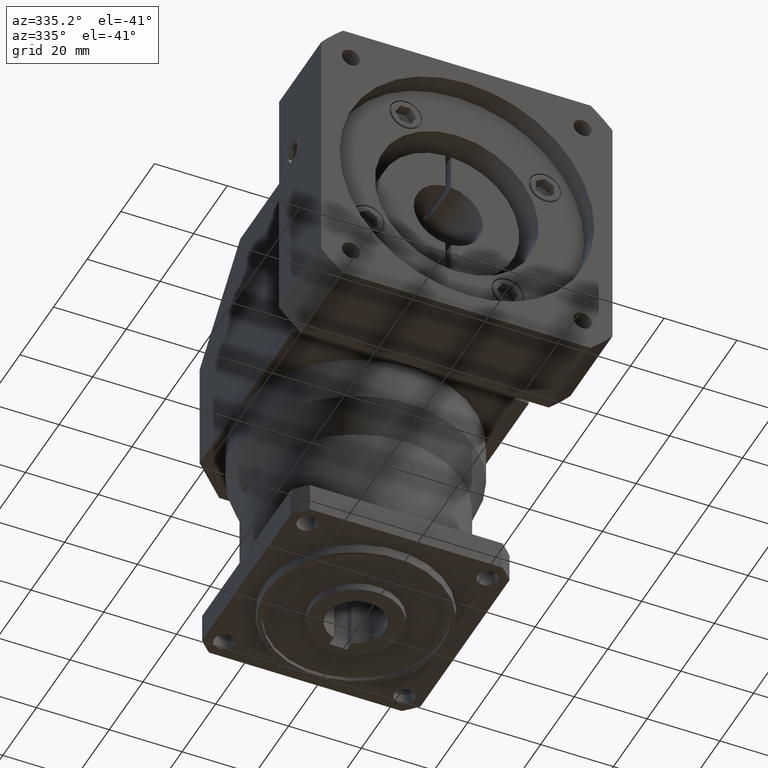
[diagram: clean part render]
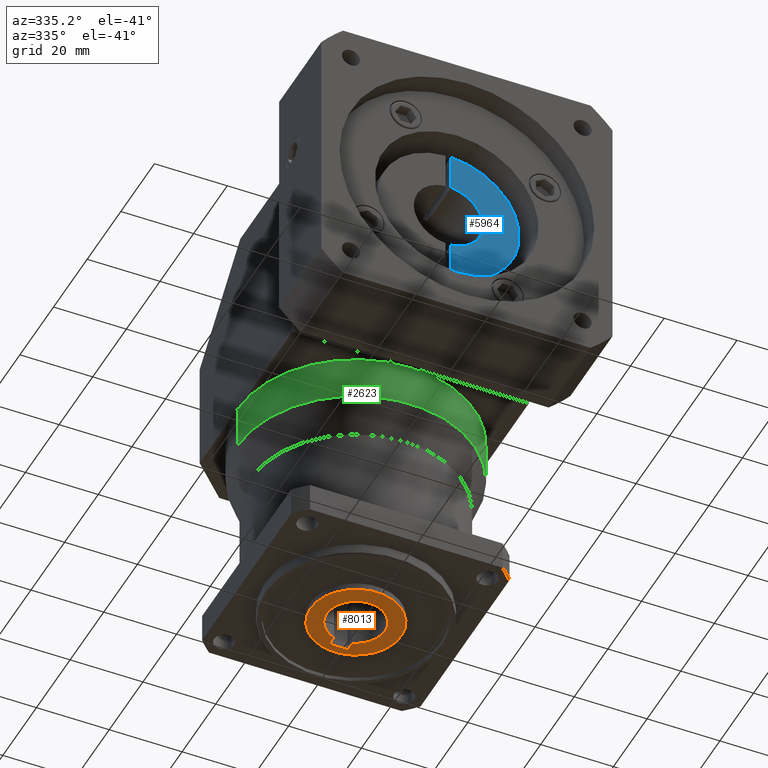
[diagram: same view with three faces highlighted in distinct colors, each labeled with its STEP entity id]
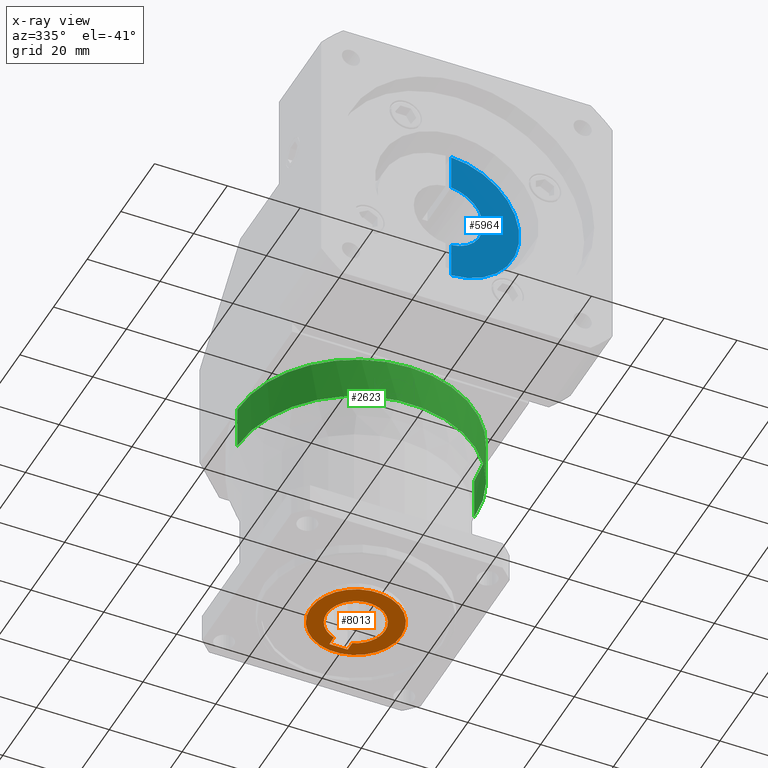
[diagram: x-ray of the same camera — body ghosted, the three highlighted faces saturated]
A machine part, auxiliary view with three faces highlighted in distinct colors.
The next image is the same camera in x-ray (body ghosted, the three faces saturated) — at least one of them is partly hidden behind the body in this view.
Their STEP definitions:

[orange] entity #8013 — the highlighted planar face has unit normal (0, 0, -1).
#71 = LINE ( 'NONE', #4248, #3592 ) ;
#85 = CIRCLE ( 'NONE', #5119, 12.50000000000000000 ) ;
#97 = ORIENTED_EDGE ( 'NONE', *, *, #7495, .F. ) ;
#203 = CIRCLE ( 'NONE', #5933, 8.000000000000000000 ) ;
#271 = CARTESIAN_POINT ( 'NONE',  ( 0.0000000000000000000, 0.0000000000000000000, -58.50000000000000000 ) ) ;
#290 = DIRECTION ( 'NONE',  ( 1.000000000000000000, -0.0000000000000000000, -0.0000000000000000000 ) ) ;
#297 = CIRCLE ( 'NONE', #5760, 12.50000000000000000 ) ;
#438 = CARTESIAN_POINT ( 'NONE',  ( -8.000000000000000000, 0.0000000000000000000, -58.50000000000000000 ) ) ;
#577 = EDGE_CURVE ( 'NONE', #7012, #4023, #970, .T. ) ;
#741 = VERTEX_POINT ( 'NONE', #3409 ) ;
#836 = AXIS2_PLACEMENT_3D ( 'NONE', #7604, #3645, #8276 ) ;
#853 = VERTEX_POINT ( 'NONE', #438 ) ;
#934 = DIRECTION ( 'NONE',  ( -1.000000000000000000, 0.0000000000000000000, 0.0000000000000000000 ) ) ;
#970 = LINE ( 'NONE', #5415, #7817 ) ;
#1108 = FACE_BOUND ( 'NONE', #6588, .T. ) ;
#1192 = CARTESIAN_POINT ( 'NONE',  ( -2.500000000000000000, 10.30000000000000100, -58.50000000000000000 ) ) ;
#1245 = ORIENTED_EDGE ( 'NONE', *, *, #7852, .F. ) ;
#1255 = ORIENTED_EDGE ( 'NONE', *, *, #8435, .F. ) ;
#1315 = FACE_OUTER_BOUND ( 'NONE', #5149, .T. ) ;
#2107 = CARTESIAN_POINT ( 'NONE',  ( 0.0000000000000000000, 0.0000000000000000000, -58.50000000000000000 ) ) ;
#2125 = ORIENTED_EDGE ( 'NONE', *, *, #6408, .F. ) ;
#2145 = VERTEX_POINT ( 'NONE', #5902 ) ;
#2466 = DIRECTION ( 'NONE',  ( 0.0000000000000000000, 0.0000000000000000000, -1.000000000000000000 ) ) ;
#2522 = DIRECTION ( 'NONE',  ( 0.0000000000000000000, 0.0000000000000000000, -1.000000000000000000 ) ) ;
#2765 = DIRECTION ( 'NONE',  ( -1.000000000000000000, 0.0000000000000000000, 0.0000000000000000000 ) ) ;
#2866 = ORIENTED_EDGE ( 'NONE', *, *, #577, .F. ) ;
#3409 = CARTESIAN_POINT ( 'NONE',  ( 12.50000000000000000, 0.0000000000000000000, -58.50000000000000000 ) ) ;
#3592 = VECTOR ( 'NONE', #290, 1000.000000000000000 ) ;
#3637 = AXIS2_PLACEMENT_3D ( 'NONE', #7518, #5072, #8284 ) ;
#3645 = DIRECTION ( 'NONE',  ( 0.0000000000000000000, 0.0000000000000000000, -1.000000000000000000 ) ) ;
#3794 = LINE ( 'NONE', #1192, #5357 ) ;
#3825 = VERTEX_POINT ( 'NONE', #7380 ) ;
#4023 = VERTEX_POINT ( 'NONE', #8410 ) ;
#4237 = ORIENTED_EDGE ( 'NONE', *, *, #4403, .F. ) ;
#4248 = CARTESIAN_POINT ( 'NONE',  ( 2.500000000000000000, 10.30000000000000100, -58.50000000000000000 ) ) ;
#4270 = AXIS2_PLACEMENT_3D ( 'NONE', #4471, #2522, #7161 ) ;
#4403 = EDGE_CURVE ( 'NONE', #4023, #6966, #4850, .T. ) ;
#4471 = CARTESIAN_POINT ( 'NONE',  ( 0.0000000000000000000, 0.0000000000000000000, -58.50000000000000000 ) ) ;
#4492 = ORIENTED_EDGE ( 'NONE', *, *, #5832, .T. ) ;
#4850 = CIRCLE ( 'NONE', #3637, 8.000000000000000000 ) ;
#4897 = DIRECTION ( 'NONE',  ( 0.0000000000000000000, 0.0000000000000000000, -1.000000000000000000 ) ) ;
#4958 = DIRECTION ( 'NONE',  ( 0.0000000000000000000, -1.000000000000000000, 0.0000000000000000000 ) ) ;
#5072 = DIRECTION ( 'NONE',  ( 0.0000000000000000000, 0.0000000000000000000, -1.000000000000000000 ) ) ;
#5119 = AXIS2_PLACEMENT_3D ( 'NONE', #2107, #6748, #2765 ) ;
#5149 = EDGE_LOOP ( 'NONE', ( #6200, #4492 ) ) ;
#5244 = CIRCLE ( 'NONE', #836, 8.000000000000000000 ) ;
#5357 = VECTOR ( 'NONE', #6488, 1000.000000000000000 ) ;
#5415 = CARTESIAN_POINT ( 'NONE',  ( 2.500000000000000000, 10.30000000000000100, -58.50000000000000000 ) ) ;
#5760 = AXIS2_PLACEMENT_3D ( 'NONE', #6434, #2466, #7108 ) ;
#5832 = EDGE_CURVE ( 'NONE', #6625, #741, #85, .T. ) ;
#5902 = CARTESIAN_POINT ( 'NONE',  ( -2.500000000000000000, 7.599342076785331900, -58.50000000000000000 ) ) ;
#5933 = AXIS2_PLACEMENT_3D ( 'NONE', #271, #4897, #934 ) ;
#6200 = ORIENTED_EDGE ( 'NONE', *, *, #6556, .T. ) ;
#6408 = EDGE_CURVE ( 'NONE', #6966, #853, #203, .T. ) ;
#6434 = CARTESIAN_POINT ( 'NONE',  ( 0.0000000000000000000, 0.0000000000000000000, -58.50000000000000000 ) ) ;
#6476 = PLANE ( 'NONE',  #4270 ) ;
#6488 = DIRECTION ( 'NONE',  ( -0.0000000000000000000, 1.000000000000000000, -0.0000000000000000000 ) ) ;
#6556 = EDGE_CURVE ( 'NONE', #741, #6625, #297, .T. ) ;
#6588 = EDGE_LOOP ( 'NONE', ( #4237, #2866, #1245, #97, #1255, #2125 ) ) ;
#6625 = VERTEX_POINT ( 'NONE', #7192 ) ;
#6748 = DIRECTION ( 'NONE',  ( 0.0000000000000000000, 0.0000000000000000000, -1.000000000000000000 ) ) ;
#6966 = VERTEX_POINT ( 'NONE', #7640 ) ;
#7012 = VERTEX_POINT ( 'NONE', #7051 ) ;
#7051 = CARTESIAN_POINT ( 'NONE',  ( 2.500000000000000000, 10.30000000000000100, -58.50000000000000000 ) ) ;
#7108 = DIRECTION ( 'NONE',  ( -1.000000000000000000, 0.0000000000000000000, 0.0000000000000000000 ) ) ;
#7161 = DIRECTION ( 'NONE',  ( -1.000000000000000000, 0.0000000000000000000, -0.0000000000000000000 ) ) ;
#7192 = CARTESIAN_POINT ( 'NONE',  ( -12.50000000000000000, 1.530808498934191500E-015, -58.50000000000000000 ) ) ;
#7380 = CARTESIAN_POINT ( 'NONE',  ( -2.500000000000000000, 10.30000000000000100, -58.50000000000000000 ) ) ;
#7495 = EDGE_CURVE ( 'NONE', #2145, #3825, #3794, .T. ) ;
#7518 = CARTESIAN_POINT ( 'NONE',  ( 0.0000000000000000000, 0.0000000000000000000, -58.50000000000000000 ) ) ;
#7604 = CARTESIAN_POINT ( 'NONE',  ( 0.0000000000000000000, 0.0000000000000000000, -58.50000000000000000 ) ) ;
#7640 = CARTESIAN_POINT ( 'NONE',  ( 8.000000000000000000, 9.797174393178825700E-016, -58.50000000000000000 ) ) ;
#7817 = VECTOR ( 'NONE', #4958, 1000.000000000000000 ) ;
#7852 = EDGE_CURVE ( 'NONE', #3825, #7012, #71, .T. ) ;
#8013 = ADVANCED_FACE ( 'NONE', ( #1108, #1315 ), #6476, .T. ) ;
#8276 = DIRECTION ( 'NONE',  ( -1.000000000000000000, 0.0000000000000000000, 0.0000000000000000000 ) ) ;
#8284 = DIRECTION ( 'NONE',  ( -1.000000000000000000, 0.0000000000000000000, 0.0000000000000000000 ) ) ;
#8410 = CARTESIAN_POINT ( 'NONE',  ( 2.500000000000000000, 7.599342076785331900, -58.50000000000000000 ) ) ;
#8435 = EDGE_CURVE ( 'NONE', #853, #2145, #5244, .T. ) ;

[blue] entity #5964 — the highlighted planar face has unit normal (0, -1, 0).
#56 = AXIS2_PLACEMENT_3D ( 'NONE', #6921, #7695, #6976 ) ;
#65 = CARTESIAN_POINT ( 'NONE',  ( 0.7499999999999976700, -55.00000000000000700, 53.00000000000000700 ) ) ;
#90 = VECTOR ( 'NONE', #4794, 1000.000000000000000 ) ;
#146 = CARTESIAN_POINT ( 'NONE',  ( 0.7500000000000025500, -55.00000000000000700, 13.01442841485013500 ) ) ;
#252 = CARTESIAN_POINT ( 'NONE',  ( 0.7500000000000013300, -55.00000000000000700, 23.02965153756209600 ) ) ;
#308 = CARTESIAN_POINT ( 'NONE',  ( 0.0000000000000000000, -55.00000000000000700, 32.50000000000000000 ) ) ;
#835 = VERTEX_POINT ( 'NONE', #146 ) ;
#1566 = ORIENTED_EDGE ( 'NONE', *, *, #2933, .F. ) ;
#1631 = DIRECTION ( 'NONE',  ( 0.0000000000000000000, -1.000000000000000000, 0.0000000000000000000 ) ) ;
#2061 = EDGE_LOOP ( 'NONE', ( #6583, #3572, #7829, #1566 ) ) ;
#2101 = CARTESIAN_POINT ( 'NONE',  ( 0.7499999999999988900, -55.00000000000000700, 41.97034846243790400 ) ) ;
#2269 = PLANE ( 'NONE',  #5385 ) ;
#2473 = DIRECTION ( 'NONE',  ( -1.216421949617883100E-016, -0.0000000000000000000, 1.000000000000000000 ) ) ;
#2563 = CIRCLE ( 'NONE', #56, 9.500000000000001800 ) ;
#2590 = EDGE_CURVE ( 'NONE', #835, #8366, #7146, .T. ) ;
#2776 = LINE ( 'NONE', #65, #4526 ) ;
#2933 = EDGE_CURVE ( 'NONE', #4545, #5789, #2776, .T. ) ;
#3289 = CIRCLE ( 'NONE', #8214, 19.50000000000000000 ) ;
#3298 = FACE_OUTER_BOUND ( 'NONE', #2061, .T. ) ;
#3345 = EDGE_CURVE ( 'NONE', #8366, #4545, #2563, .T. ) ;
#3352 = CARTESIAN_POINT ( 'NONE',  ( 0.7499999999999977800, -55.00000000000000700, 51.98557158514987000 ) ) ;
#3555 = EDGE_CURVE ( 'NONE', #835, #5789, #3289, .T. ) ;
#3572 = ORIENTED_EDGE ( 'NONE', *, *, #2590, .F. ) ;
#4487 = CARTESIAN_POINT ( 'NONE',  ( 0.7499999999999976700, -55.00000000000000700, 53.00000000000000700 ) ) ;
#4526 = VECTOR ( 'NONE', #2473, 1000.000000000000000 ) ;
#4545 = VERTEX_POINT ( 'NONE', #2101 ) ;
#4731 = CARTESIAN_POINT ( 'NONE',  ( 0.0000000000000000000, -55.00000000000000700, 32.50000000000000000 ) ) ;
#4794 = DIRECTION ( 'NONE',  ( -1.216421949617883100E-016, -0.0000000000000000000, 1.000000000000000000 ) ) ;
#4978 = DIRECTION ( 'NONE',  ( 0.0000000000000000000, 0.0000000000000000000, -1.000000000000000000 ) ) ;
#5007 = DIRECTION ( 'NONE',  ( 0.0000000000000000000, -1.000000000000000000, 0.0000000000000000000 ) ) ;
#5385 = AXIS2_PLACEMENT_3D ( 'NONE', #308, #1631, #6253 ) ;
#5789 = VERTEX_POINT ( 'NONE', #3352 ) ;
#5964 = ADVANCED_FACE ( 'NONE', ( #3298 ), #2269, .T. ) ;
#6253 = DIRECTION ( 'NONE',  ( 0.0000000000000000000, -0.0000000000000000000, -1.000000000000000000 ) ) ;
#6583 = ORIENTED_EDGE ( 'NONE', *, *, #3345, .F. ) ;
#6921 = CARTESIAN_POINT ( 'NONE',  ( 0.0000000000000000000, -55.00000000000000700, 32.50000000000000000 ) ) ;
#6976 = DIRECTION ( 'NONE',  ( 0.0000000000000000000, 0.0000000000000000000, -1.000000000000000000 ) ) ;
#7146 = LINE ( 'NONE', #4487, #90 ) ;
#7695 = DIRECTION ( 'NONE',  ( 0.0000000000000000000, -1.000000000000000000, 0.0000000000000000000 ) ) ;
#7829 = ORIENTED_EDGE ( 'NONE', *, *, #3555, .T. ) ;
#8214 = AXIS2_PLACEMENT_3D ( 'NONE', #4731, #5007, #4978 ) ;
#8366 = VERTEX_POINT ( 'NONE', #252 ) ;

[green] entity #2623 — the highlighted cylindrical surface (partial cylindrical patch) has radius 32.5 mm, axis along (0, 0, 1).
#64 = VECTOR ( 'NONE', #5966, 1000.000000000000000 ) ;
#215 = EDGE_CURVE ( 'NONE', #1861, #8296, #1093, .T. ) ;
#471 = CARTESIAN_POINT ( 'NONE',  ( 32.50000000000000000, 0.0000000000000000000, -21.62000000000000100 ) ) ;
#624 = EDGE_LOOP ( 'NONE', ( #4689, #7980, #6361, #898, #7075 ) ) ;
#829 = CARTESIAN_POINT ( 'NONE',  ( -32.50000000000000000, 0.0000000000000000000, 0.0000000000000000000 ) ) ;
#898 = ORIENTED_EDGE ( 'NONE', *, *, #1332, .F. ) ;
#922 = DIRECTION ( 'NONE',  ( -0.0000000000000000000, -0.0000000000000000000, 1.000000000000000000 ) ) ;
#1093 = CIRCLE ( 'NONE', #5915, 32.50000000000000000 ) ;
#1260 = EDGE_CURVE ( 'NONE', #8294, #7646, #3478, .T. ) ;
#1332 = EDGE_CURVE ( 'NONE', #7646, #2815, #5541, .T. ) ;
#1386 = DIRECTION ( 'NONE',  ( 0.0000000000000000000, 0.0000000000000000000, 1.000000000000000000 ) ) ;
#1858 = AXIS2_PLACEMENT_3D ( 'NONE', #4911, #1386, #5651 ) ;
#1861 = VERTEX_POINT ( 'NONE', #2098 ) ;
#1967 = VECTOR ( 'NONE', #6446, 1000.000000000000000 ) ;
#2098 = CARTESIAN_POINT ( 'NONE',  ( -32.50000000000000000, 3.980102097228898600E-015, -11.99999999999997300 ) ) ;
#2418 = AXIS2_PLACEMENT_3D ( 'NONE', #3210, #4301, #4135 ) ;
#2623 = ADVANCED_FACE ( 'NONE', ( #8494 ), #4329, .T. ) ;
#2642 = CARTESIAN_POINT ( 'NONE',  ( 0.0000000000000000000, -32.50000000000000000, 0.0000000000000000000 ) ) ;
#2815 = VERTEX_POINT ( 'NONE', #3482 ) ;
#3208 = AXIS2_PLACEMENT_3D ( 'NONE', #4631, #4136, #4566 ) ;
#3210 = CARTESIAN_POINT ( 'NONE',  ( 0.0000000000000000000, 0.0000000000000000000, 0.0000000000000000000 ) ) ;
#3478 = CIRCLE ( 'NONE', #2418, 32.50000000000000000 ) ;
#3482 = CARTESIAN_POINT ( 'NONE',  ( 32.49999999999999300, 6.938893903907228400E-015, 0.0000000000000000000 ) ) ;
#3585 = LINE ( 'NONE', #3972, #64 ) ;
#3972 = CARTESIAN_POINT ( 'NONE',  ( -32.50000000000000000, 3.980102097228898600E-015, -21.62000000000000100 ) ) ;
#4135 = DIRECTION ( 'NONE',  ( 1.000000000000000000, 0.0000000000000000000, 0.0000000000000000000 ) ) ;
#4136 = DIRECTION ( 'NONE',  ( 0.0000000000000000000, 0.0000000000000000000, 1.000000000000000000 ) ) ;
#4213 = DIRECTION ( 'NONE',  ( 1.000000000000000000, 0.0000000000000000000, 0.0000000000000000000 ) ) ;
#4301 = DIRECTION ( 'NONE',  ( 0.0000000000000000000, 0.0000000000000000000, 1.000000000000000000 ) ) ;
#4329 = CYLINDRICAL_SURFACE ( 'NONE', #3208, 32.50000000000000000 ) ;
#4566 = DIRECTION ( 'NONE',  ( 1.000000000000000000, 0.0000000000000000000, 0.0000000000000000000 ) ) ;
#4631 = CARTESIAN_POINT ( 'NONE',  ( 0.0000000000000000000, 0.0000000000000000000, -21.62000000000000100 ) ) ;
#4689 = ORIENTED_EDGE ( 'NONE', *, *, #8148, .F. ) ;
#4888 = CARTESIAN_POINT ( 'NONE',  ( 0.0000000000000000000, 0.0000000000000000000, -11.99999999999997300 ) ) ;
#4911 = CARTESIAN_POINT ( 'NONE',  ( 0.0000000000000000000, 0.0000000000000000000, 0.0000000000000000000 ) ) ;
#5541 = CIRCLE ( 'NONE', #1858, 32.50000000000000000 ) ;
#5542 = EDGE_CURVE ( 'NONE', #8296, #2815, #5683, .T. ) ;
#5651 = DIRECTION ( 'NONE',  ( 1.000000000000000000, 0.0000000000000000000, 0.0000000000000000000 ) ) ;
#5683 = LINE ( 'NONE', #471, #1967 ) ;
#5915 = AXIS2_PLACEMENT_3D ( 'NONE', #4888, #922, #4213 ) ;
#5966 = DIRECTION ( 'NONE',  ( 0.0000000000000000000, 0.0000000000000000000, 1.000000000000000000 ) ) ;
#6104 = CARTESIAN_POINT ( 'NONE',  ( 32.50000000000000000, 0.0000000000000000000, -11.99999999999997300 ) ) ;
#6361 = ORIENTED_EDGE ( 'NONE', *, *, #5542, .T. ) ;
#6446 = DIRECTION ( 'NONE',  ( 0.0000000000000000000, 0.0000000000000000000, 1.000000000000000000 ) ) ;
#7075 = ORIENTED_EDGE ( 'NONE', *, *, #1260, .F. ) ;
#7646 = VERTEX_POINT ( 'NONE', #2642 ) ;
#7980 = ORIENTED_EDGE ( 'NONE', *, *, #215, .T. ) ;
#8148 = EDGE_CURVE ( 'NONE', #1861, #8294, #3585, .T. ) ;
#8294 = VERTEX_POINT ( 'NONE', #829 ) ;
#8296 = VERTEX_POINT ( 'NONE', #6104 ) ;
#8494 = FACE_OUTER_BOUND ( 'NONE', #624, .T. ) ;